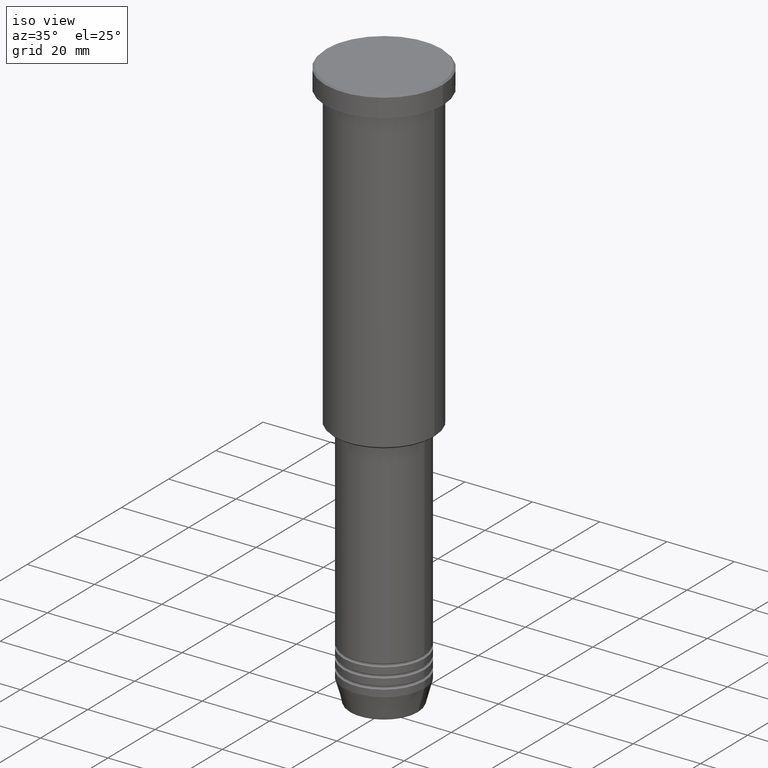
[diagram: clean part render]
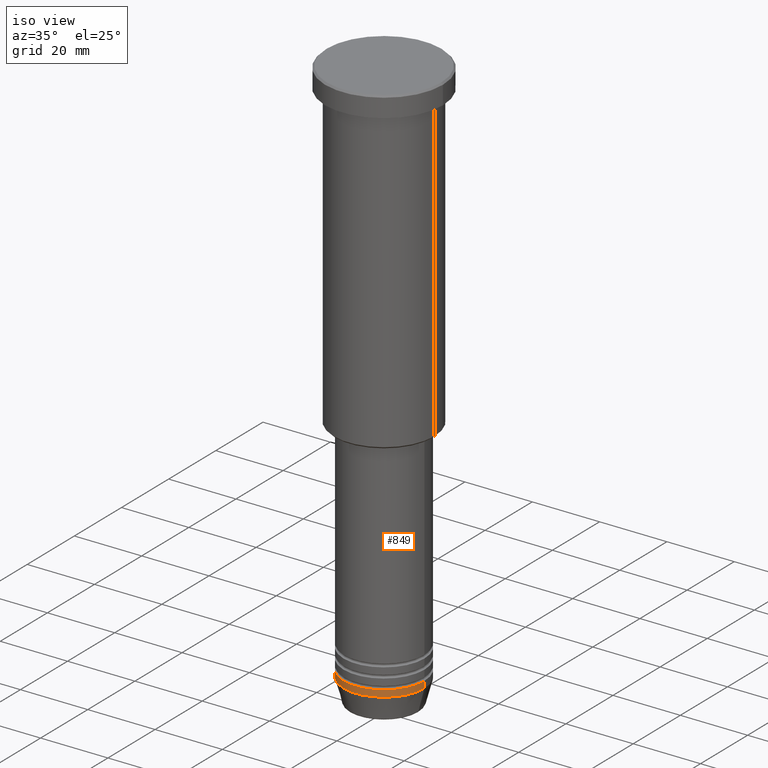
[diagram: same view with one face highlighted and labeled with its STEP entity id]
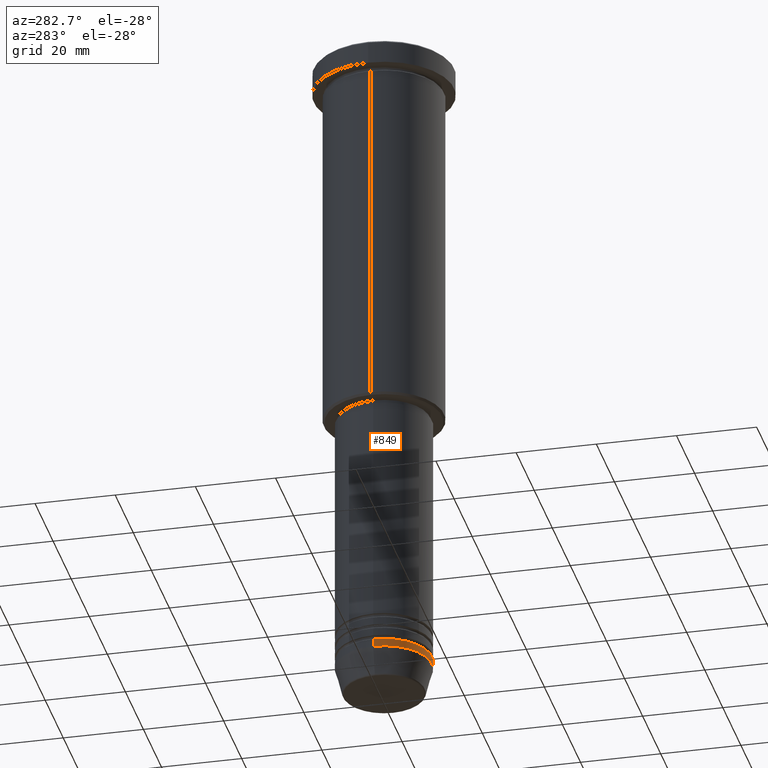
[diagram: same view with one face highlighted and labeled with its STEP entity id]
A machine part, iso view. The second image highlights one B-rep face of the part: STEP entity #849.
A second angle (auxiliary view) of the same face is appended — the face is thin or edge-on in the first view.
In plain terms, the highlighted cylindrical surface (partial cylindrical patch) has radius 12 mm, axis along (-0, -0, 1).
Its self-contained STEP definition (entity closure, byte-faithful):
#5 = ORIENTED_EDGE ( 'NONE', *, *, #986, .T. ) ;
#7 = CYLINDRICAL_SURFACE ( 'NONE', #1106, 12.00000000000000000 ) ;
#13 = ORIENTED_EDGE ( 'NONE', *, *, #479, .F. ) ;
#27 = DIRECTION ( 'NONE',  ( 1.000000000000000000, 0.000000000000000000, 0.000000000000000000 ) ) ;
#42 = LINE ( 'NONE', #141, #563 ) ;
#85 = VERTEX_POINT ( 'NONE', #779 ) ;
#90 = FACE_OUTER_BOUND ( 'NONE', #117, .T. ) ;
#94 = CARTESIAN_POINT ( 'NONE',  ( 12.00000000000000000, 0.000000000000000000, 0.000000000000000000 ) ) ;
#117 = EDGE_LOOP ( 'NONE', ( #13, #5, #266, #379 ) ) ;
#141 = CARTESIAN_POINT ( 'NONE',  ( -12.00000000000000000, 1.469576158976823947E-15, 0.000000000000000000 ) ) ;
#211 = VERTEX_POINT ( 'NONE', #323 ) ;
#219 = CARTESIAN_POINT ( 'NONE',  ( 0.000000000000000000, 0.000000000000000000, -162.0000000000000000 ) ) ;
#224 = DIRECTION ( 'NONE',  ( 1.000000000000000000, 0.000000000000000000, 0.000000000000000000 ) ) ;
#232 = AXIS2_PLACEMENT_3D ( 'NONE', #924, #490, #27 ) ;
#242 = CARTESIAN_POINT ( 'NONE',  ( -12.00000000000000000, 1.469576158976823947E-15, -162.0000000000000000 ) ) ;
#266 = ORIENTED_EDGE ( 'NONE', *, *, #804, .T. ) ;
#323 = CARTESIAN_POINT ( 'NONE',  ( 12.00000000000000000, 0.000000000000000000, -162.0000000000000000 ) ) ;
#374 = DIRECTION ( 'NONE',  ( 1.000000000000000000, 0.000000000000000000, 0.000000000000000000 ) ) ;
#379 = ORIENTED_EDGE ( 'NONE', *, *, #1050, .F. ) ;
#416 = CIRCLE ( 'NONE', #232, 12.00000000000000000 ) ;
#479 = EDGE_CURVE ( 'NONE', #85, #696, #42, .T. ) ;
#490 = DIRECTION ( 'NONE',  ( -0.000000000000000000, -0.000000000000000000, 1.000000000000000000 ) ) ;
#498 = VECTOR ( 'NONE', #1109, 1000.000000000000000 ) ;
#563 = VECTOR ( 'NONE', #656, 1000.000000000000000 ) ;
#623 = CIRCLE ( 'NONE', #717, 12.00000000000000000 ) ;
#638 = DIRECTION ( 'NONE',  ( -0.000000000000000000, -0.000000000000000000, 1.000000000000000000 ) ) ;
#656 = DIRECTION ( 'NONE',  ( -0.000000000000000000, -0.000000000000000000, 1.000000000000000000 ) ) ;
#684 = VERTEX_POINT ( 'NONE', #1070 ) ;
#696 = VERTEX_POINT ( 'NONE', #242 ) ;
#717 = AXIS2_PLACEMENT_3D ( 'NONE', #219, #1114, #224 ) ;
#779 = CARTESIAN_POINT ( 'NONE',  ( -12.00000000000000000, 1.469576158976823947E-15, -164.0000000000000000 ) ) ;
#804 = EDGE_CURVE ( 'NONE', #684, #211, #980, .T. ) ;
#849 = ADVANCED_FACE ( 'NONE', ( #90 ), #7, .T. ) ;
#902 = CARTESIAN_POINT ( 'NONE',  ( 0.000000000000000000, 0.000000000000000000, 0.000000000000000000 ) ) ;
#924 = CARTESIAN_POINT ( 'NONE',  ( 0.000000000000000000, 0.000000000000000000, -164.0000000000000000 ) ) ;
#980 = LINE ( 'NONE', #94, #498 ) ;
#986 = EDGE_CURVE ( 'NONE', #85, #684, #416, .T. ) ;
#1050 = EDGE_CURVE ( 'NONE', #696, #211, #623, .T. ) ;
#1070 = CARTESIAN_POINT ( 'NONE',  ( 12.00000000000000000, 0.000000000000000000, -164.0000000000000000 ) ) ;
#1106 = AXIS2_PLACEMENT_3D ( 'NONE', #902, #638, #374 ) ;
#1109 = DIRECTION ( 'NONE',  ( -0.000000000000000000, -0.000000000000000000, 1.000000000000000000 ) ) ;
#1114 = DIRECTION ( 'NONE',  ( -0.000000000000000000, -0.000000000000000000, 1.000000000000000000 ) ) ;